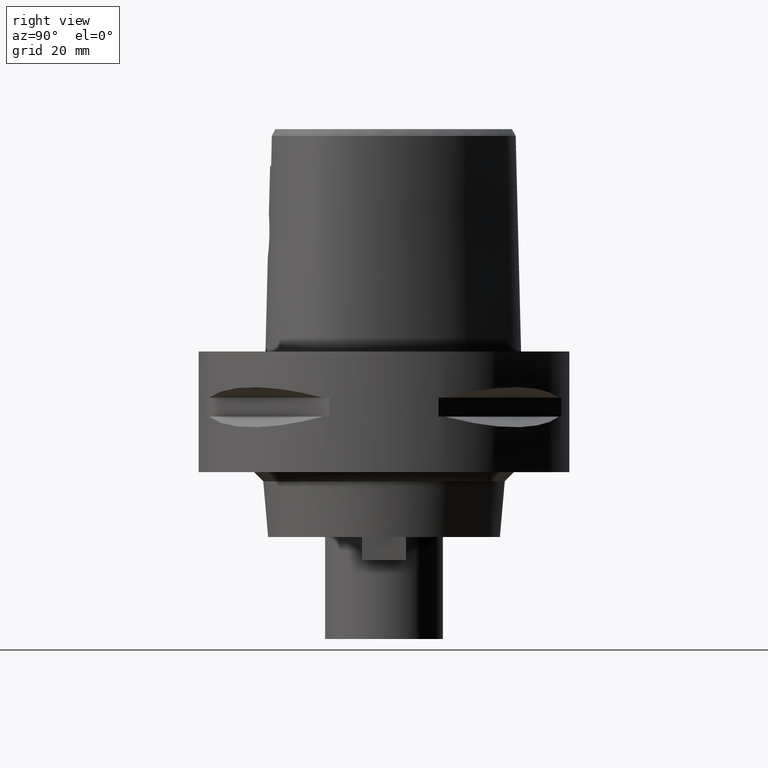
[diagram: clean part render]
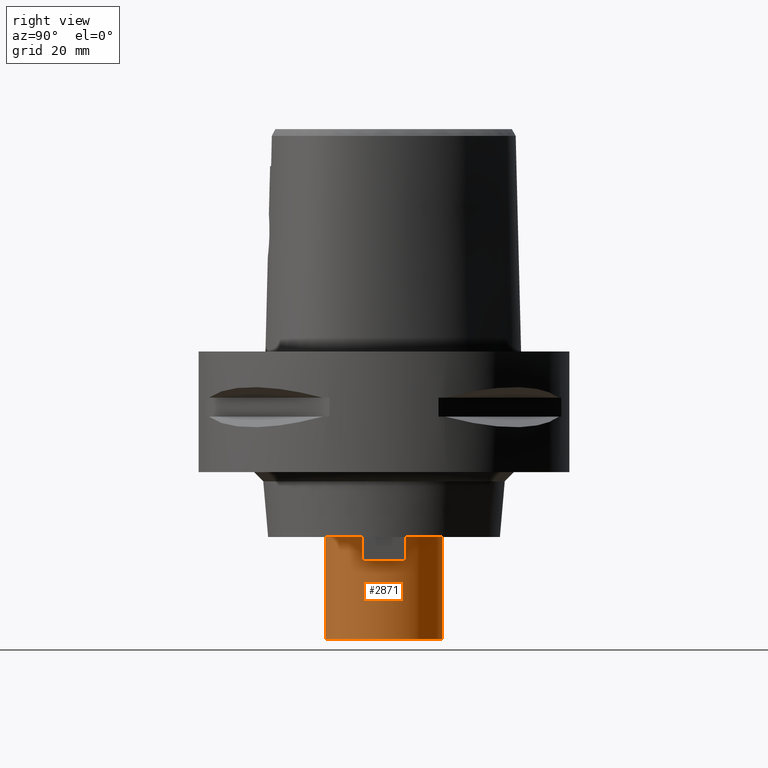
[diagram: same view with one face highlighted and labeled with its STEP entity id]
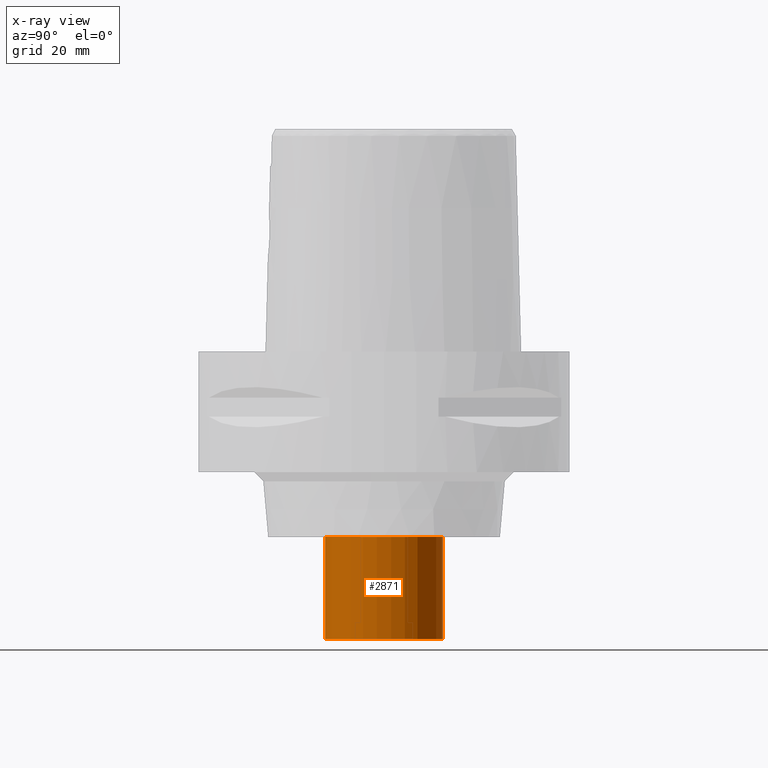
[diagram: x-ray of the same camera — body ghosted, the highlighted face saturated]
A machine part, right view. The second image highlights one B-rep face of the part: STEP entity #2871.
The next image is the same camera in x-ray: the body ghosted, the highlighted face saturated — about 0% of this face is hidden behind the body in this view.
In plain terms, the highlighted cylindrical surface (partial cylindrical patch) has radius 12.7 mm, axis along (0, 0, -1).
Its self-contained STEP definition (entity closure, byte-faithful):
#625=CARTESIAN_POINT('',(0.E0,1.262610849921E-14,-4.E1));
#626=DIRECTION('',(0.E0,0.E0,-1.E0));
#627=DIRECTION('',(0.E0,1.E0,0.E0));
#628=AXIS2_PLACEMENT_3D('',#625,#626,#627);
#661=DIRECTION('',(0.E0,0.E0,-1.E0));
#662=VECTOR('',#661,2.2E1);
#663=CARTESIAN_POINT('',(0.E0,-1.27E1,-4.E1));
#664=LINE('',#663,#662);
#668=DIRECTION('',(0.E0,0.E0,-1.E0));
#669=VECTOR('',#668,2.2E1);
#670=CARTESIAN_POINT('',(0.E0,1.27E1,-4.E1));
#671=LINE('',#670,#669);
#675=CARTESIAN_POINT('',(0.E0,1.262610849921E-14,-6.2E1));
#676=DIRECTION('',(0.E0,0.E0,1.E0));
#677=DIRECTION('',(0.E0,-1.E0,0.E0));
#678=AXIS2_PLACEMENT_3D('',#675,#676,#677);
#1778=CARTESIAN_POINT('',(0.E0,-1.27E1,-4.E1));
#1779=CARTESIAN_POINT('',(0.E0,1.27E1,-4.E1));
#1780=VERTEX_POINT('',#1778);
#1781=VERTEX_POINT('',#1779);
#1798=CARTESIAN_POINT('',(0.E0,1.27E1,-6.2E1));
#1799=VERTEX_POINT('',#1798);
#1800=CARTESIAN_POINT('',(0.E0,-1.27E1,-6.2E1));
#1801=VERTEX_POINT('',#1800);
#2859=CARTESIAN_POINT('',(0.E0,1.262610849921E-14,3.1E0));
#2860=DIRECTION('',(0.E0,0.E0,-1.E0));
#2861=DIRECTION('',(0.E0,-1.E0,0.E0));
#2862=AXIS2_PLACEMENT_3D('',#2859,#2860,#2861);
#2863=CYLINDRICAL_SURFACE('',#2862,1.27E1);
#2864=ORIENTED_EDGE('',*,*,#2849,.T.);
#2866=ORIENTED_EDGE('',*,*,#2865,.F.);
#2867=ORIENTED_EDGE('',*,*,#2852,.F.);
#2868=ORIENTED_EDGE('',*,*,#2819,.F.);
#2869=EDGE_LOOP('',(#2864,#2866,#2867,#2868));
#2870=FACE_OUTER_BOUND('',#2869,.F.);
#629=CIRCLE('',#628,1.27E1);
#679=CIRCLE('',#678,1.27E1);
#2819=EDGE_CURVE('',#1781,#1780,#629,.T.);
#2849=EDGE_CURVE('',#1781,#1799,#671,.T.);
#2852=EDGE_CURVE('',#1780,#1801,#664,.T.);
#2865=EDGE_CURVE('',#1801,#1799,#679,.T.);
#2871=ADVANCED_FACE('',(#2870),#2863,.T.);